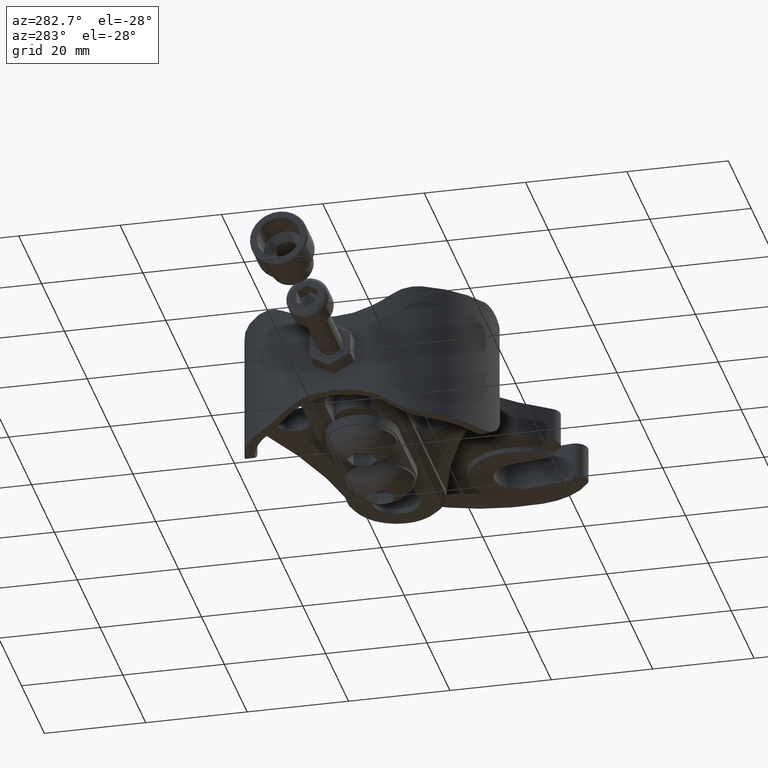
[diagram: clean part render]
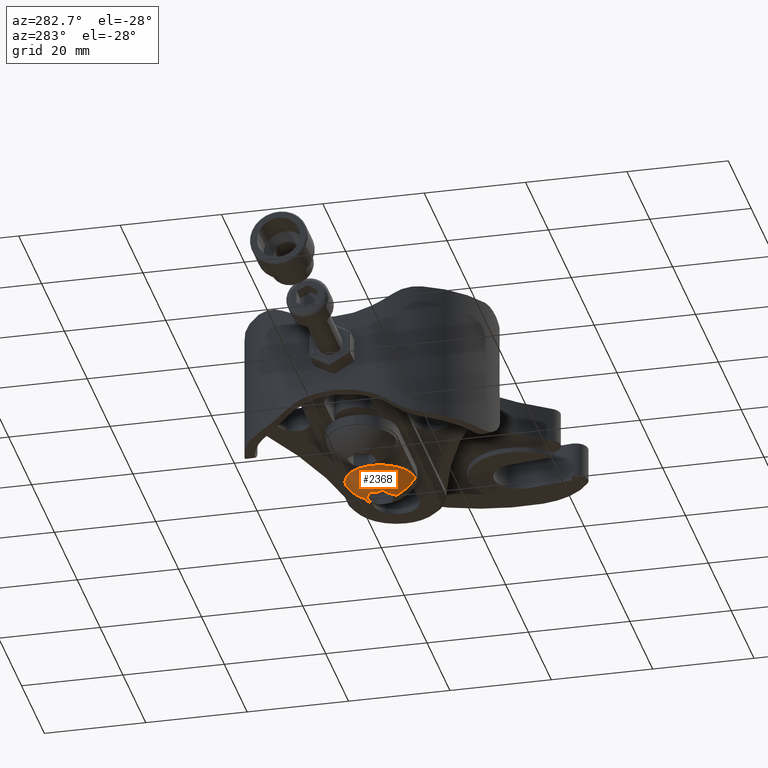
[diagram: same view with one face highlighted and labeled with its STEP entity id]
A machine part, auxiliary view. The second image highlights one B-rep face of the part: STEP entity #2368.
In plain terms, the highlighted spherical surface has radius 7.8653 mm.
Its self-contained STEP definition (entity closure, byte-faithful):
#254 = EDGE_LOOP ( 'NONE', ( #2514, #2515, #2516, #2517, #2518, #2519, #2520, #2521 ) ) ;
#473 = VERTEX_POINT ( 'NONE', #7800 ) ;
#474 = VERTEX_POINT ( 'NONE', #7801 ) ;
#475 = VERTEX_POINT ( 'NONE', #7823 ) ;
#477 = VERTEX_POINT ( 'NONE', #7825 ) ;
#479 = VERTEX_POINT ( 'NONE', #7827 ) ;
#483 = VERTEX_POINT ( 'NONE', #7831 ) ;
#484 = VERTEX_POINT ( 'NONE', #7832 ) ;
#488 = VERTEX_POINT ( 'NONE', #7836 ) ;
#1458 = EDGE_CURVE ( 'NONE', #474, #477, #3438, .T. ) ;
#1462 = EDGE_CURVE ( 'NONE', #475, #473, #3442, .T. ) ;
#1468 = EDGE_CURVE ( 'NONE', #484, #473, #3449, .T. ) ;
#1477 = EDGE_CURVE ( 'NONE', #477, #484, #3462, .T. ) ;
#1478 = EDGE_CURVE ( 'NONE', #479, #474, #3463, .T. ) ;
#1479 = EDGE_CURVE ( 'NONE', #488, #479, #3464, .T. ) ;
#1480 = EDGE_CURVE ( 'NONE', #483, #488, #3458, .T. ) ;
#1481 = EDGE_CURVE ( 'NONE', #475, #483, #3465, .T. ) ;
#2368 = ADVANCED_FACE ( 'NONE', ( #8945 ), #8936, .T. ) ;
#2514 = ORIENTED_EDGE ( 'NONE', *, *, #1458, .F. ) ;
#2515 = ORIENTED_EDGE ( 'NONE', *, *, #1478, .F. ) ;
#2516 = ORIENTED_EDGE ( 'NONE', *, *, #1479, .F. ) ;
#2517 = ORIENTED_EDGE ( 'NONE', *, *, #1480, .F. ) ;
#2518 = ORIENTED_EDGE ( 'NONE', *, *, #1481, .F. ) ;
#2519 = ORIENTED_EDGE ( 'NONE', *, *, #1462, .T. ) ;
#2520 = ORIENTED_EDGE ( 'NONE', *, *, #1468, .F. ) ;
#2521 = ORIENTED_EDGE ( 'NONE', *, *, #1477, .F. ) ;
#3438 = CIRCLE ( 'NONE', #7334, 0.3096579724409448400 ) ;
#3442 = CIRCLE ( 'NONE', #7338, 0.3096579724409449000 ) ;
#3449 = CIRCLE ( 'NONE', #7343, 0.2696850393700787100 ) ;
#3458 = CIRCLE ( 'NONE', #7352, 0.2932674911778663800 ) ;
#3462 = CIRCLE ( 'NONE', #7349, 0.2696850393700787100 ) ;
#3463 = CIRCLE ( 'NONE', #7350, 0.2932674911778664900 ) ;
#3464 = CIRCLE ( 'NONE', #7351, 0.2932674911778663800 ) ;
#3465 = CIRCLE ( 'NONE', #7353, 0.2932674911778664400 ) ;
#7334 = AXIS2_PLACEMENT_3D ( 'NONE', #8324, #8325, #8326 ) ;
#7338 = AXIS2_PLACEMENT_3D ( 'NONE', #8336, #8337, #8338 ) ;
#7343 = AXIS2_PLACEMENT_3D ( 'NONE', #8355, #8356, #8357 ) ;
#7349 = AXIS2_PLACEMENT_3D ( 'NONE', #7551, #7552, #7553 ) ;
#7350 = AXIS2_PLACEMENT_3D ( 'NONE', #7555, #7556, #7557 ) ;
#7351 = AXIS2_PLACEMENT_3D ( 'NONE', #7558, #7559, #7560 ) ;
#7352 = AXIS2_PLACEMENT_3D ( 'NONE', #7562, #7563, #7564 ) ;
#7353 = AXIS2_PLACEMENT_3D ( 'NONE', #7566, #7567, #7568 ) ;
#7430 = AXIS2_PLACEMENT_3D ( 'NONE', #9174, #9173, #9176 ) ;
#7551 = CARTESIAN_POINT ( 'NONE',  ( -0.6496062992125984900, 0.0000000000000000000, 0.0000000000000000000 ) ) ;
#7552 = DIRECTION ( 'NONE',  ( 1.000000000000000000, -0.0000000000000000000, -0.0000000000000000000 ) ) ;
#7553 = DIRECTION ( 'NONE',  ( 0.0000000000000000000, 0.0000000000000000000, -1.000000000000000000 ) ) ;
#7555 = CARTESIAN_POINT ( 'NONE',  ( -0.4974286417322836300, -0.09196320573605570900, -0.03774926893629752100 ) ) ;
#7556 = DIRECTION ( 'NONE',  ( -0.0000000000000000000, 0.9250952180973526200, 0.3797352201908744100 ) ) ;
#7557 = DIRECTION ( 'NONE',  ( 0.0000000000000000000, 0.3797352201908743000, -0.9250952180973525100 ) ) ;
#7558 = CARTESIAN_POINT ( 'NONE',  ( -0.4974286417322836300, -0.01328977699490342100, -0.09851710684902782700 ) ) ;
#7559 = DIRECTION ( 'NONE',  ( -0.0000000000000000000, 0.1336872616517012200, 0.9910235698872502700 ) ) ;
#7560 = DIRECTION ( 'NONE',  ( 0.0000000000000000000, 0.9910235698872502700, -0.1336872616517011900 ) ) ;
#7562 = CARTESIAN_POINT ( 'NONE',  ( -0.4974286417322836300, 0.07867342874115231000, -0.06076783791273021600 ) ) ;
#7563 = DIRECTION ( 'NONE',  ( -0.0000000000000000000, -0.7914079564456515400, 0.6112883496963752400 ) ) ;
#7564 = DIRECTION ( 'NONE',  ( -9.315209069686489600E-016, 0.6112883496963750200, 0.7914079564456514300 ) ) ;
#7566 = CARTESIAN_POINT ( 'NONE',  ( -0.4974286417322836300, 0.09196320573605569500, 0.03774926893629762500 ) ) ;
#7567 = DIRECTION ( 'NONE',  ( 0.0000000000000000000, -0.9250952180973522900, -0.3797352201908749700 ) ) ;
#7568 = DIRECTION ( 'NONE',  ( 0.0000000000000000000, -0.3797352201908748600, 0.9250952180973522900 ) ) ;
#7800 = CARTESIAN_POINT ( 'NONE',  ( -0.6496062992125984900, 0.2696850393700787100, 0.0000000000000000000 ) ) ;
#7801 = CARTESIAN_POINT ( 'NONE',  ( -0.7878433562997804200, -0.1074586127721571000, 1.298271104376246700E-017 ) ) ;
#7823 = CARTESIAN_POINT ( 'NONE',  ( -0.7878433562997803100, 0.1074586127721571500, 0.0000000000000000000 ) ) ;
#7825 = CARTESIAN_POINT ( 'NONE',  ( -0.6496062992125984900, -0.2696850393700787600, 3.302689202424949100E-017 ) ) ;
#7827 = CARTESIAN_POINT ( 'NONE',  ( -0.7850251331520057300, -0.07016865515397274800, -0.09084425052355026000 ) ) ;
#7831 = CARTESIAN_POINT ( 'NONE',  ( -0.7850251331520056200, 0.1137577563181387000, -0.01534571265095506500 ) ) ;
#7832 = CARTESIAN_POINT ( 'NONE',  ( -0.6496062992125984900, 3.302689202424947800E-017, -0.2696850393700787100 ) ) ;
#7836 = CARTESIAN_POINT ( 'NONE',  ( -0.7850251331520056200, 0.04358910116416599100, -0.1061899631745053500 ) ) ;
#8324 = CARTESIAN_POINT ( 'NONE',  ( -0.4974286417322836300, -5.122214988120493500E-017, 0.0000000000000000000 ) ) ;
#8325 = DIRECTION ( 'NONE',  ( 0.0000000000000000000, 1.224646799147353200E-016, 1.000000000000000000 ) ) ;
#8326 = DIRECTION ( 'NONE',  ( 0.0000000000000000000, -1.000000000000000000, 1.224646799147353500E-016 ) ) ;
#8336 = CARTESIAN_POINT ( 'NONE',  ( -0.4974286417322836300, -5.122214988120493500E-017, 0.0000000000000000000 ) ) ;
#8337 = DIRECTION ( 'NONE',  ( 0.0000000000000000000, 0.0000000000000000000, -1.000000000000000000 ) ) ;
#8338 = DIRECTION ( 'NONE',  ( -1.000000000000000000, 0.0000000000000000000, 0.0000000000000000000 ) ) ;
#8355 = CARTESIAN_POINT ( 'NONE',  ( -0.6496062992125984900, 0.0000000000000000000, 0.0000000000000000000 ) ) ;
#8356 = DIRECTION ( 'NONE',  ( 1.000000000000000000, -0.0000000000000000000, -0.0000000000000000000 ) ) ;
#8357 = DIRECTION ( 'NONE',  ( 0.0000000000000000000, 0.0000000000000000000, -1.000000000000000000 ) ) ;
#8936 = SPHERICAL_SURFACE ( 'NONE', #7430, 0.3096579724409448400 ) ;
#8945 = FACE_OUTER_BOUND ( 'NONE', #254, .T. ) ;
#9173 = DIRECTION ( 'NONE',  ( 0.0000000000000000000, -0.0000000000000000000, 1.000000000000000000 ) ) ;
#9174 = CARTESIAN_POINT ( 'NONE',  ( -0.4974286417322836300, -5.122214988120493500E-017, 0.0000000000000000000 ) ) ;
#9176 = DIRECTION ( 'NONE',  ( 0.0000000000000000000, 1.000000000000000000, 0.0000000000000000000 ) ) ;